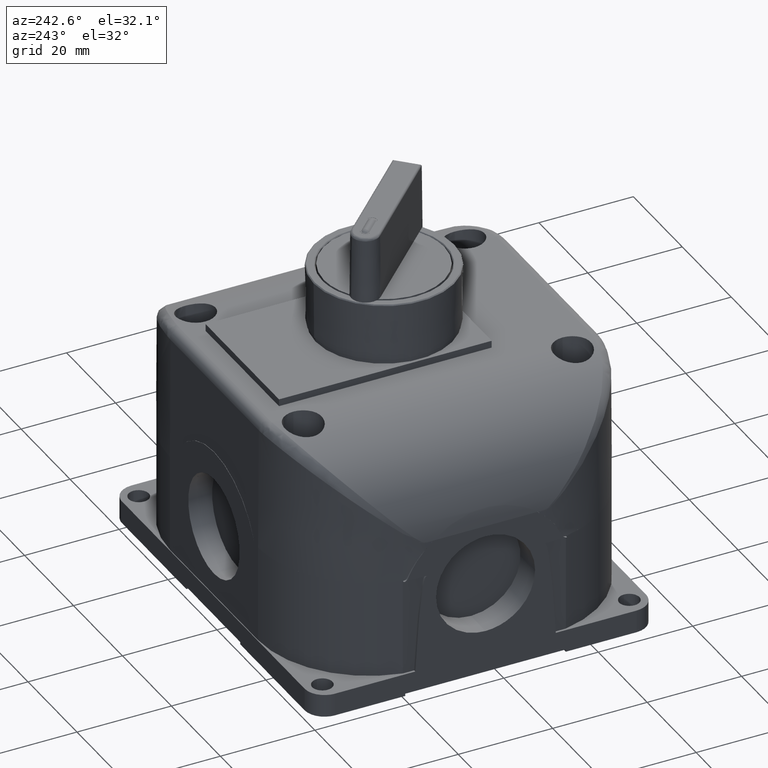
[diagram: clean part render]
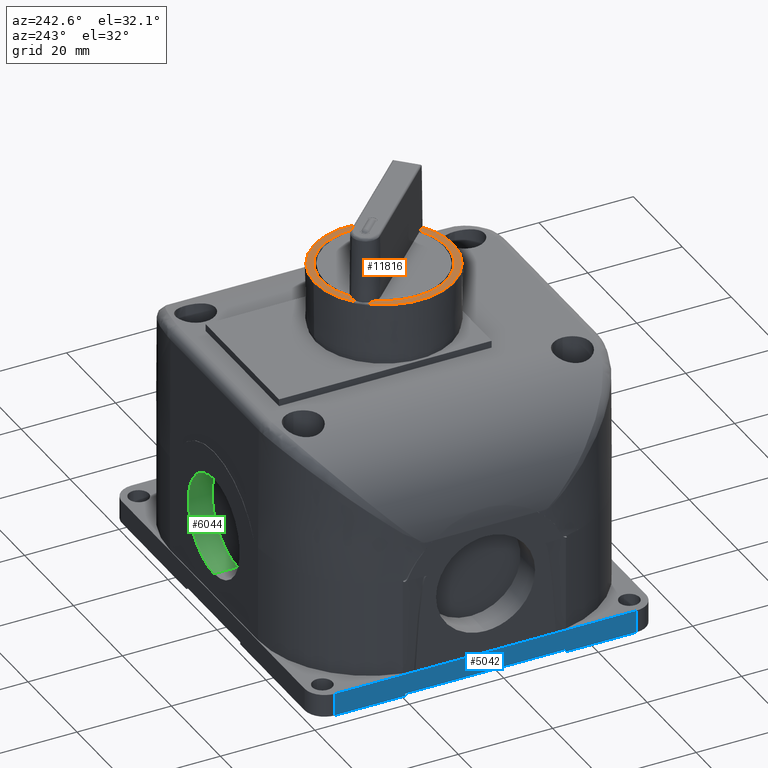
[diagram: same view with three faces highlighted in distinct colors, each labeled with its STEP entity id]
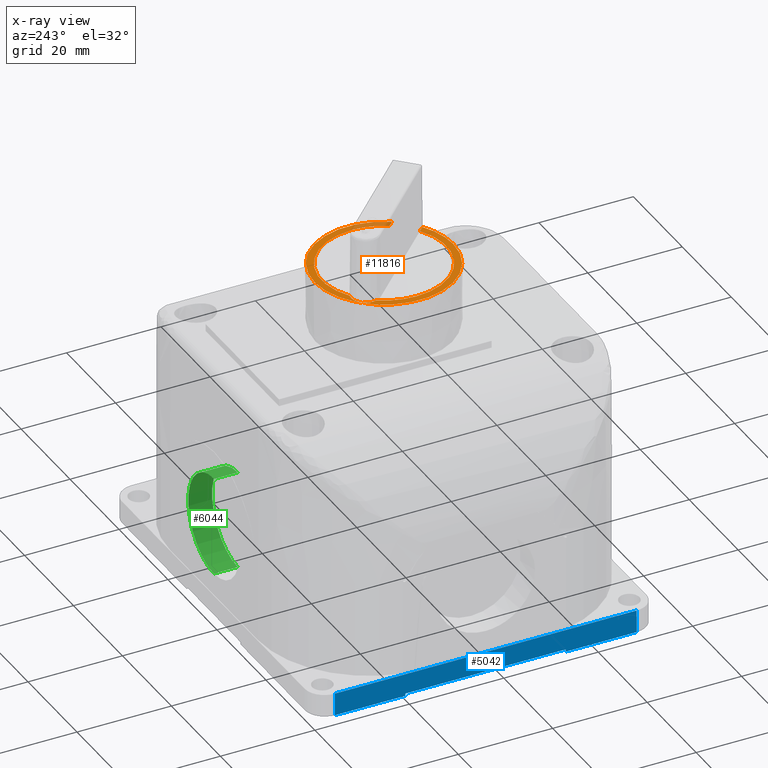
[diagram: x-ray of the same camera — body ghosted, the three highlighted faces saturated]
A machine part, auxiliary view with three faces highlighted in distinct colors.
The next image is the same camera in x-ray (body ghosted, the three faces saturated) — at least one of them is partly hidden behind the body in this view.
Their STEP definitions:

[orange] entity #11816 — the highlighted planar face has unit normal (-0, -0, 1).
#2 = EDGE_CURVE ( 'NONE', #13411, #6306, #2454, .T. ) ;
#219 = VERTEX_POINT ( 'NONE', #745 ) ;
#494 = VECTOR ( 'NONE', #20759, 39.37007874015748854 ) ;
#745 = CARTESIAN_POINT ( 'NONE',  ( 1.114173228346456490, -1.423117759614849209, 2.677165354330712788 ) ) ;
#826 = CARTESIAN_POINT ( 'NONE',  ( 1.908198192951427119, -1.864490782767820987, 2.677165354330711455 ) ) ;
#858 = CARTESIAN_POINT ( 'NONE',  ( 2.153543307086613012, -1.423117759614849209, 2.677165354330711455 ) ) ;
#1532 = PLANE ( 'NONE',  #7733 ) ;
#1755 = CARTESIAN_POINT ( 'NONE',  ( 1.633858267716535195, -1.423117759614849209, 2.677165354330711455 ) ) ;
#1897 = DIRECTION ( 'NONE',  ( -1.125009339162699962E-16, -1.491862189340040050E-16, 1.000000000000000000 ) ) ;
#2012 = DIRECTION ( 'NONE',  ( 0.000000000000000000, 1.000000000000000000, 0.000000000000000000 ) ) ;
#2454 = LINE ( 'NONE', #17565, #5187 ) ;
#2570 = DIRECTION ( 'NONE',  ( 1.000000000000000000, 0.000000000000000000, 0.000000000000000000 ) ) ;
#2929 = CARTESIAN_POINT ( 'NONE',  ( 1.633858267716535195, -1.423117759614849209, 2.677165354330711455 ) ) ;
#2976 = EDGE_CURVE ( 'NONE', #9259, #11567, #23097, .T. ) ;
#3382 = DIRECTION ( 'NONE',  ( 1.971276677246371765E-16, 1.314184451497579533E-16, -1.000000000000000000 ) ) ;
#3410 = LINE ( 'NONE', #7718, #494 ) ;
#3465 = AXIS2_PLACEMENT_3D ( 'NONE', #19357, #17360, #2012 ) ;
#3793 = EDGE_CURVE ( 'NONE', #6306, #24271, #15079, .T. ) ;
#4107 = ORIENTED_EDGE ( 'NONE', *, *, #7811, .F. ) ;
#4426 = AXIS2_PLACEMENT_3D ( 'NONE', #16241, #6694, #23836 ) ;
#4441 = EDGE_CURVE ( 'NONE', #13411, #219, #8708, .T. ) ;
#4453 = CIRCLE ( 'NONE', #24262, 0.1181102362205045109 ) ;
#4673 = DIRECTION ( 'NONE',  ( 0.000000000000000000, 1.000000000000000000, 0.000000000000000000 ) ) ;
#5050 = CIRCLE ( 'NONE', #3465, 0.5787401574803132664 ) ;
#5187 = VECTOR ( 'NONE', #8141, 39.37007874015748854 ) ;
#5229 = ORIENTED_EDGE ( 'NONE', *, *, #3793, .F. ) ;
#5372 = ORIENTED_EDGE ( 'NONE', *, *, #9730, .T. ) ;
#5657 = CARTESIAN_POINT ( 'NONE',  ( 1.950960079532611635, -1.907252669349005281, 2.677165354330712788 ) ) ;
#6306 = VERTEX_POINT ( 'NONE', #5657 ) ;
#6509 = CARTESIAN_POINT ( 'NONE',  ( 1.633858267716535195, -1.423117759614849209, 2.677165354330712788 ) ) ;
#6694 = DIRECTION ( 'NONE',  ( 5.821901664775122867E-17, 1.746570499432533902E-16, -1.000000000000000000 ) ) ;
#6832 = AXIS2_PLACEMENT_3D ( 'NONE', #2929, #18282, #21898 ) ;
#6868 = EDGE_CURVE ( 'NONE', #11567, #12797, #4453, .T. ) ;
#7388 = CARTESIAN_POINT ( 'NONE',  ( 1.633858267716535195, -0.8443776021345360538, 2.677165354330711455 ) ) ;
#7639 = CIRCLE ( 'NONE', #10802, 0.5196850393700785942 ) ;
#7704 = EDGE_CURVE ( 'NONE', #24271, #8534, #10000, .T. ) ;
#7718 = CARTESIAN_POINT ( 'NONE',  ( 1.397228045665921403, -1.019454439646152233, 2.677165354330712788 ) ) ;
#7733 = AXIS2_PLACEMENT_3D ( 'NONE', #9561, #1897, #9078 ) ;
#7811 = EDGE_CURVE ( 'NONE', #12399, #23081, #3410, .T. ) ;
#8141 = DIRECTION ( 'NONE',  ( 0.7071067811865469066, -0.7071067811865479058, 0.000000000000000000 ) ) ;
#8534 = VERTEX_POINT ( 'NONE', #7388 ) ;
#8708 = CIRCLE ( 'NONE', #11864, 0.5196850393700789272 ) ;
#9078 = DIRECTION ( 'NONE',  ( 0.000000000000000000, -1.000000000000000000, -1.491862189340040050E-16 ) ) ;
#9259 = VERTEX_POINT ( 'NONE', #15741 ) ;
#9264 = ORIENTED_EDGE ( 'NONE', *, *, #9275, .T. ) ;
#9275 = EDGE_CURVE ( 'NONE', #18714, #23081, #11938, .T. ) ;
#9561 = CARTESIAN_POINT ( 'NONE',  ( 1.633858267716535861, -0.8732437871479239444, 2.677165354330712788 ) ) ;
#9730 = EDGE_CURVE ( 'NONE', #219, #9259, #19882, .T. ) ;
#9775 = CARTESIAN_POINT ( 'NONE',  ( 2.075231290869508527, -1.697457684849739579, 2.677165354330712788 ) ) ;
#10000 = CIRCLE ( 'NONE', #6832, 0.5787401574803132664 ) ;
#10390 = AXIS2_PLACEMENT_3D ( 'NONE', #14194, #10591, #4673 ) ;
#10591 = DIRECTION ( 'NONE',  ( 0.000000000000000000, 5.782411586588736411E-16, -1.000000000000000000 ) ) ;
#10802 = AXIS2_PLACEMENT_3D ( 'NONE', #1755, #3382, #14646 ) ;
#11285 = FACE_OUTER_BOUND ( 'NONE', #14907, .T. ) ;
#11315 = DIRECTION ( 'NONE',  ( 0.000000000000000000, 5.782411586588736411E-16, -1.000000000000000000 ) ) ;
#11567 = VERTEX_POINT ( 'NONE', #15669 ) ;
#11816 = ADVANCED_FACE ( 'NONE', ( #11285 ), #1532, .T. ) ;
#11864 = AXIS2_PLACEMENT_3D ( 'NONE', #21037, #15311, #23282 ) ;
#11938 = CIRCLE ( 'NONE', #16697, 0.5196850393700785942 ) ;
#11956 = ORIENTED_EDGE ( 'NONE', *, *, #2, .F. ) ;
#12201 = ORIENTED_EDGE ( 'NONE', *, *, #6868, .T. ) ;
#12399 = VERTEX_POINT ( 'NONE', #17275 ) ;
#12797 = VERTEX_POINT ( 'NONE', #20594 ) ;
#12810 = ORIENTED_EDGE ( 'NONE', *, *, #7704, .F. ) ;
#13411 = VERTEX_POINT ( 'NONE', #826 ) ;
#14194 = CARTESIAN_POINT ( 'NONE',  ( 1.313711496706880144, -1.102970988605192826, 2.677165354330988123 ) ) ;
#14303 = ORIENTED_EDGE ( 'NONE', *, *, #2976, .T. ) ;
#14646 = DIRECTION ( 'NONE',  ( 1.000000000000000000, 0.000000000000000000, 0.000000000000000000 ) ) ;
#14907 = EDGE_LOOP ( 'NONE', ( #4107, #16896, #12810, #5229, #11956, #23759, #5372, #14303, #12201, #23036, #9264 ) ) ;
#15042 = CARTESIAN_POINT ( 'NONE',  ( 1.313711496706880144, -1.102970988605192826, 2.677165354330988123 ) ) ;
#15079 = CIRCLE ( 'NONE', #4426, 0.5787401574803132664 ) ;
#15311 = DIRECTION ( 'NONE',  ( 1.971276677246371765E-16, 1.314184451497579533E-16, -1.000000000000000000 ) ) ;
#15669 = CARTESIAN_POINT ( 'NONE',  ( 1.313711496706880144, -0.9848607523846881762, 2.677165354330988123 ) ) ;
#15741 = CARTESIAN_POINT ( 'NONE',  ( 1.200428591372363130, -1.136392706978588629, 2.677165354330866887 ) ) ;
#16227 = EDGE_CURVE ( 'NONE', #8534, #12399, #5050, .T. ) ;
#16241 = CARTESIAN_POINT ( 'NONE',  ( 1.633858267716535195, -1.423117759614849209, 2.677165354330711455 ) ) ;
#16697 = AXIS2_PLACEMENT_3D ( 'NONE', #17229, #21101, #23459 ) ;
#16896 = ORIENTED_EDGE ( 'NONE', *, *, #16227, .F. ) ;
#17229 = CARTESIAN_POINT ( 'NONE',  ( 1.633858267716535195, -1.423117759614849209, 2.677165354330711455 ) ) ;
#17275 = CARTESIAN_POINT ( 'NONE',  ( 2.117993177450693043, -1.740219571430925205, 2.677165354330711455 ) ) ;
#17360 = DIRECTION ( 'NONE',  ( 5.821901664775122867E-17, 1.746570499432533902E-16, -1.000000000000000000 ) ) ;
#17463 = CARTESIAN_POINT ( 'NONE',  ( 1.633858267716535195, -2.001857917095162698, 2.677165354330711455 ) ) ;
#17565 = CARTESIAN_POINT ( 'NONE',  ( 2.218474110429826673, -2.174766700246219209, 2.677165354330712788 ) ) ;
#18282 = DIRECTION ( 'NONE',  ( 5.821901664775122867E-17, 1.746570499432533902E-16, -1.000000000000000000 ) ) ;
#18714 = VERTEX_POINT ( 'NONE', #858 ) ;
#19270 = EDGE_CURVE ( 'NONE', #12797, #18714, #7639, .T. ) ;
#19357 = CARTESIAN_POINT ( 'NONE',  ( 1.633858267716535195, -1.423117759614849209, 2.677165354330711455 ) ) ;
#19557 = DIRECTION ( 'NONE',  ( 1.971276677246371765E-16, 1.314184451497579533E-16, -1.000000000000000000 ) ) ;
#19882 = CIRCLE ( 'NONE', #21770, 0.5196850393700789272 ) ;
#20594 = CARTESIAN_POINT ( 'NONE',  ( 1.347133215080276614, -0.9896880832706759223, 2.677165354330867775 ) ) ;
#20759 = DIRECTION ( 'NONE',  ( -0.7071067811865469066, 0.7071067811865479058, 0.000000000000000000 ) ) ;
#21037 = CARTESIAN_POINT ( 'NONE',  ( 1.633858267716535195, -1.423117759614849209, 2.677165354330712788 ) ) ;
#21101 = DIRECTION ( 'NONE',  ( 1.971276677246371765E-16, 1.314184451497579533E-16, -1.000000000000000000 ) ) ;
#21770 = AXIS2_PLACEMENT_3D ( 'NONE', #6509, #19557, #2570 ) ;
#21898 = DIRECTION ( 'NONE',  ( 0.000000000000000000, 1.000000000000000000, 0.000000000000000000 ) ) ;
#22774 = DIRECTION ( 'NONE',  ( 0.000000000000000000, 1.000000000000000000, 0.000000000000000000 ) ) ;
#23036 = ORIENTED_EDGE ( 'NONE', *, *, #19270, .T. ) ;
#23081 = VERTEX_POINT ( 'NONE', #9775 ) ;
#23097 = CIRCLE ( 'NONE', #10390, 0.1181102362205045109 ) ;
#23282 = DIRECTION ( 'NONE',  ( 1.000000000000000000, 1.051347561198064613E-15, 0.000000000000000000 ) ) ;
#23459 = DIRECTION ( 'NONE',  ( 1.000000000000000000, 0.000000000000000000, 0.000000000000000000 ) ) ;
#23759 = ORIENTED_EDGE ( 'NONE', *, *, #4441, .T. ) ;
#23836 = DIRECTION ( 'NONE',  ( 0.000000000000000000, 1.000000000000000000, 0.000000000000000000 ) ) ;
#24262 = AXIS2_PLACEMENT_3D ( 'NONE', #15042, #11315, #22774 ) ;
#24271 = VERTEX_POINT ( 'NONE', #17463 ) ;

[blue] entity #5042 — the highlighted planar face has unit normal (1, 0, -0).
#77 = VECTOR ( 'NONE', #11884, 39.37007874015748143 ) ;
#203 = VERTEX_POINT ( 'NONE', #17732 ) ;
#252 = CARTESIAN_POINT ( 'NONE',  ( 0.000000000000000000, -0.7538264210321719005, 0.1889763779527557364 ) ) ;
#546 = EDGE_CURVE ( 'NONE', #14587, #203, #22463, .T. ) ;
#790 = CARTESIAN_POINT ( 'NONE',  ( 0.000000000000000000, -2.092409098197526074, 0.1889763779527557364 ) ) ;
#916 = VERTEX_POINT ( 'NONE', #23559 ) ;
#1196 = DIRECTION ( 'NONE',  ( -0.000000000000000000, -0.000000000000000000, -1.000000000000000000 ) ) ;
#1285 = VECTOR ( 'NONE', #10043, 39.37007874015748143 ) ;
#1691 = DIRECTION ( 'NONE',  ( -0.000000000000000000, -0.000000000000000000, -1.000000000000000000 ) ) ;
#2273 = LINE ( 'NONE', #8207, #23484 ) ;
#2516 = ORIENTED_EDGE ( 'NONE', *, *, #6860, .F. ) ;
#3166 = VERTEX_POINT ( 'NONE', #22582 ) ;
#3285 = AXIS2_PLACEMENT_3D ( 'NONE', #8433, #11886, #12387 ) ;
#3401 = VERTEX_POINT ( 'NONE', #5986 ) ;
#3406 = ORIENTED_EDGE ( 'NONE', *, *, #10153, .T. ) ;
#3502 = ORIENTED_EDGE ( 'NONE', *, *, #7546, .F. ) ;
#3748 = FACE_OUTER_BOUND ( 'NONE', #7867, .T. ) ;
#5042 = ADVANCED_FACE ( 'NONE', ( #3748 ), #14135, .F. ) ;
#5497 = CARTESIAN_POINT ( 'NONE',  ( 0.000000000000000000, -2.680878390158818902, 0.000000000000000000 ) ) ;
#5611 = VECTOR ( 'NONE', #18903, 39.37007874015748143 ) ;
#5986 = CARTESIAN_POINT ( 'NONE',  ( 0.000000000000000000, -2.680878390158818902, 0.1889763779527557364 ) ) ;
#6289 = ORIENTED_EDGE ( 'NONE', *, *, #7043, .T. ) ;
#6487 = ORIENTED_EDGE ( 'NONE', *, *, #9227, .F. ) ;
#6492 = LINE ( 'NONE', #790, #22864 ) ;
#6860 = EDGE_CURVE ( 'NONE', #7352, #3401, #7491, .T. ) ;
#7043 = EDGE_CURVE ( 'NONE', #9872, #8948, #17602, .T. ) ;
#7143 = ORIENTED_EDGE ( 'NONE', *, *, #19156, .T. ) ;
#7352 = VERTEX_POINT ( 'NONE', #17320 ) ;
#7491 = LINE ( 'NONE', #17029, #5611 ) ;
#7546 = EDGE_CURVE ( 'NONE', #3401, #8948, #18667, .T. ) ;
#7867 = EDGE_LOOP ( 'NONE', ( #2516, #3406, #6487, #22632, #10177, #10296, #7143, #22061, #6289, #3502 ) ) ;
#8018 = VECTOR ( 'NONE', #1691, 39.37007874015748143 ) ;
#8207 = CARTESIAN_POINT ( 'NONE',  ( 0.000000000000000000, -0.7538264210321719005, 0.01968503937007848661 ) ) ;
#8433 = CARTESIAN_POINT ( 'NONE',  ( 0.000000000000000000, -0.7538264210321719005, 0.1889763779527557364 ) ) ;
#8487 = CARTESIAN_POINT ( 'NONE',  ( 0.000000000000000000, -0.7538264210321719005, 0.01968503937007848661 ) ) ;
#8628 = LINE ( 'NONE', #10966, #16104 ) ;
#8778 = EDGE_CURVE ( 'NONE', #16651, #203, #17416, .T. ) ;
#8948 = VERTEX_POINT ( 'NONE', #5497 ) ;
#9227 = EDGE_CURVE ( 'NONE', #23587, #916, #15493, .T. ) ;
#9385 = CARTESIAN_POINT ( 'NONE',  ( -2.731847993664263218E-16, -0.1653571290708799879, 0.1889763779527557364 ) ) ;
#9813 = DIRECTION ( 'NONE',  ( 0.000000000000000000, -1.000000000000000000, 0.000000000000000000 ) ) ;
#9872 = VERTEX_POINT ( 'NONE', #10835 ) ;
#10043 = DIRECTION ( 'NONE',  ( 0.000000000000000000, -1.000000000000000000, 0.000000000000000000 ) ) ;
#10153 = EDGE_CURVE ( 'NONE', #7352, #916, #21642, .T. ) ;
#10177 = ORIENTED_EDGE ( 'NONE', *, *, #8778, .T. ) ;
#10296 = ORIENTED_EDGE ( 'NONE', *, *, #546, .F. ) ;
#10835 = CARTESIAN_POINT ( 'NONE',  ( 0.000000000000000000, -2.092409098197526074, 0.000000000000000000 ) ) ;
#10966 = CARTESIAN_POINT ( 'NONE',  ( -2.731847993664263218E-16, -0.1653571290708799879, 0.1889763779527557364 ) ) ;
#11080 = VECTOR ( 'NONE', #14978, 39.37007874015748143 ) ;
#11208 = CARTESIAN_POINT ( 'NONE',  ( 0.000000000000000000, -2.680878390158818902, 0.1889763779527557364 ) ) ;
#11884 = DIRECTION ( 'NONE',  ( 0.000000000000000000, -1.000000000000000000, 0.000000000000000000 ) ) ;
#11886 = DIRECTION ( 'NONE',  ( 1.000000000000000000, 0.000000000000000000, -0.000000000000000000 ) ) ;
#12299 = EDGE_CURVE ( 'NONE', #23587, #16651, #8628, .T. ) ;
#12387 = DIRECTION ( 'NONE',  ( -0.000000000000000000, 0.000000000000000000, -1.000000000000000000 ) ) ;
#13945 = CARTESIAN_POINT ( 'NONE',  ( 0.000000000000000000, -0.1653571290708799879, 0.000000000000000000 ) ) ;
#14135 = PLANE ( 'NONE',  #3285 ) ;
#14587 = VERTEX_POINT ( 'NONE', #8487 ) ;
#14978 = DIRECTION ( 'NONE',  ( -0.000000000000000000, -0.000000000000000000, -1.000000000000000000 ) ) ;
#14987 = VECTOR ( 'NONE', #17890, 39.37007874015748143 ) ;
#15095 = CARTESIAN_POINT ( 'NONE',  ( 0.000000000000000000, -0.7538264210321719005, 0.1889763779527557364 ) ) ;
#15493 = LINE ( 'NONE', #252, #77 ) ;
#15894 = CARTESIAN_POINT ( 'NONE',  ( 2.567937114044407544E-14, -2.848178006270197127, 0.1889763779527546261 ) ) ;
#16104 = VECTOR ( 'NONE', #1196, 39.37007874015748143 ) ;
#16651 = VERTEX_POINT ( 'NONE', #17031 ) ;
#17029 = CARTESIAN_POINT ( 'NONE',  ( 0.000000000000000000, -0.7538264210321719005, 0.1889763779527557364 ) ) ;
#17031 = CARTESIAN_POINT ( 'NONE',  ( -2.731847993664263218E-16, -0.1653571290708799879, 0.000000000000000000 ) ) ;
#17320 = CARTESIAN_POINT ( 'NONE',  ( 2.567937114044407544E-14, -2.008574111448147015, 0.1889763779527546261 ) ) ;
#17416 = LINE ( 'NONE', #13945, #21857 ) ;
#17549 = DIRECTION ( 'NONE',  ( 0.000000000000000000, -1.000000000000000000, 0.000000000000000000 ) ) ;
#17602 = LINE ( 'NONE', #19609, #1285 ) ;
#17732 = CARTESIAN_POINT ( 'NONE',  ( 0.000000000000000000, -0.7538264210321719005, 0.000000000000000000 ) ) ;
#17890 = DIRECTION ( 'NONE',  ( -0.000000000000000000, 1.000000000000000000, -0.000000000000000000 ) ) ;
#17977 = EDGE_CURVE ( 'NONE', #3166, #9872, #6492, .T. ) ;
#18667 = LINE ( 'NONE', #11208, #8018 ) ;
#18903 = DIRECTION ( 'NONE',  ( 0.000000000000000000, -1.000000000000000000, 0.000000000000000000 ) ) ;
#19156 = EDGE_CURVE ( 'NONE', #14587, #3166, #2273, .T. ) ;
#19609 = CARTESIAN_POINT ( 'NONE',  ( 0.000000000000000000, -2.092409098197526074, 0.000000000000000000 ) ) ;
#21642 = LINE ( 'NONE', #15894, #14987 ) ;
#21857 = VECTOR ( 'NONE', #17549, 39.37007874015748143 ) ;
#22061 = ORIENTED_EDGE ( 'NONE', *, *, #17977, .T. ) ;
#22463 = LINE ( 'NONE', #15095, #11080 ) ;
#22582 = CARTESIAN_POINT ( 'NONE',  ( 0.000000000000000000, -2.092409098197526074, 0.01968503937007848661 ) ) ;
#22632 = ORIENTED_EDGE ( 'NONE', *, *, #12299, .T. ) ;
#22864 = VECTOR ( 'NONE', #23882, 39.37007874015748143 ) ;
#23484 = VECTOR ( 'NONE', #9813, 39.37007874015748143 ) ;
#23559 = CARTESIAN_POINT ( 'NONE',  ( 2.567937114044407544E-14, -0.8376614077815629500, 0.1889763779527546261 ) ) ;
#23587 = VERTEX_POINT ( 'NONE', #9385 ) ;
#23882 = DIRECTION ( 'NONE',  ( -0.000000000000000000, -0.000000000000000000, -1.000000000000000000 ) ) ;

[green] entity #6044 — the highlighted cylindrical surface (partial cylindrical patch) has radius 10.5 mm, axis along (0, -1, 0).
#66 = AXIS2_PLACEMENT_3D ( 'NONE', #8909, #16474, #6807 ) ;
#278 = DIRECTION ( 'NONE',  ( 5.276725402210818083E-16, -1.000000000000000000, 0.000000000000000000 ) ) ;
#1715 = DIRECTION ( 'NONE',  ( 5.276725402210818083E-16, -1.000000000000000000, 0.000000000000000000 ) ) ;
#2148 = EDGE_CURVE ( 'NONE', #15510, #3065, #24253, .T. ) ;
#2360 = VERTEX_POINT ( 'NONE', #22662 ) ;
#3065 = VERTEX_POINT ( 'NONE', #3723 ) ;
#3569 = LINE ( 'NONE', #11100, #6871 ) ;
#3723 = CARTESIAN_POINT ( 'NONE',  ( 1.633858267716534751, -0.2046138226069761368, 0.3740157480314939553 ) ) ;
#4069 = VECTOR ( 'NONE', #16594, 39.37007874015748143 ) ;
#4440 = EDGE_LOOP ( 'NONE', ( #18052, #16216, #9430, #18708 ) ) ;
#6044 = ADVANCED_FACE ( 'NONE', ( #11614 ), #19202, .F. ) ;
#6807 = DIRECTION ( 'NONE',  ( 0.000000000000000000, 0.000000000000000000, 1.000000000000000000 ) ) ;
#6871 = VECTOR ( 'NONE', #1715, 39.37007874015748143 ) ;
#7167 = EDGE_CURVE ( 'NONE', #8205, #3065, #12496, .T. ) ;
#7762 = CARTESIAN_POINT ( 'NONE',  ( 1.633858267716534751, -0.2046138226069761368, 1.200787401574805013 ) ) ;
#8069 = CIRCLE ( 'NONE', #15585, 0.4133858267716555845 ) ;
#8205 = VERTEX_POINT ( 'NONE', #13227 ) ;
#8839 = CARTESIAN_POINT ( 'NONE',  ( 1.633858267716534751, -0.005794924969180337455, 0.7874015748031495399 ) ) ;
#8909 = CARTESIAN_POINT ( 'NONE',  ( 1.633858267716534751, -0.2046138226069761368, 0.7874015748031495399 ) ) ;
#9430 = ORIENTED_EDGE ( 'NONE', *, *, #2148, .F. ) ;
#9765 = CARTESIAN_POINT ( 'NONE',  ( 1.633858267716534751, 0.008294289568677660346, 0.7874015748031495399 ) ) ;
#11100 = CARTESIAN_POINT ( 'NONE',  ( 1.633858267716534751, 0.008294289568677660346, 1.200787401574805013 ) ) ;
#11375 = DIRECTION ( 'NONE',  ( 0.000000000000000000, 0.000000000000000000, 1.000000000000000000 ) ) ;
#11614 = FACE_OUTER_BOUND ( 'NONE', #4440, .T. ) ;
#11787 = DIRECTION ( 'NONE',  ( 0.000000000000000000, 0.000000000000000000, 1.000000000000000000 ) ) ;
#12496 = LINE ( 'NONE', #14851, #4069 ) ;
#13227 = CARTESIAN_POINT ( 'NONE',  ( 1.633858267716534751, -0.005794924969180337455, 0.3740157480314939553 ) ) ;
#14851 = CARTESIAN_POINT ( 'NONE',  ( 1.633858267716534751, 0.008294289568677660346, 0.3740157480314939553 ) ) ;
#15510 = VERTEX_POINT ( 'NONE', #7762 ) ;
#15585 = AXIS2_PLACEMENT_3D ( 'NONE', #8839, #18264, #11375 ) ;
#16216 = ORIENTED_EDGE ( 'NONE', *, *, #7167, .T. ) ;
#16474 = DIRECTION ( 'NONE',  ( -5.276725402210818083E-16, 1.000000000000000000, -0.000000000000000000 ) ) ;
#16594 = DIRECTION ( 'NONE',  ( 5.276725402210818083E-16, -1.000000000000000000, 0.000000000000000000 ) ) ;
#18052 = ORIENTED_EDGE ( 'NONE', *, *, #20879, .T. ) ;
#18264 = DIRECTION ( 'NONE',  ( -5.276725402210818083E-16, 1.000000000000000000, -0.000000000000000000 ) ) ;
#18708 = ORIENTED_EDGE ( 'NONE', *, *, #24390, .F. ) ;
#19202 = CYLINDRICAL_SURFACE ( 'NONE', #23907, 0.4133858267716555845 ) ;
#20879 = EDGE_CURVE ( 'NONE', #2360, #8205, #8069, .T. ) ;
#22662 = CARTESIAN_POINT ( 'NONE',  ( 1.633858267716534751, -0.005794924969180337455, 1.200787401574805013 ) ) ;
#23907 = AXIS2_PLACEMENT_3D ( 'NONE', #9765, #278, #11787 ) ;
#24253 = CIRCLE ( 'NONE', #66, 0.4133858267716555845 ) ;
#24390 = EDGE_CURVE ( 'NONE', #2360, #15510, #3569, .T. ) ;